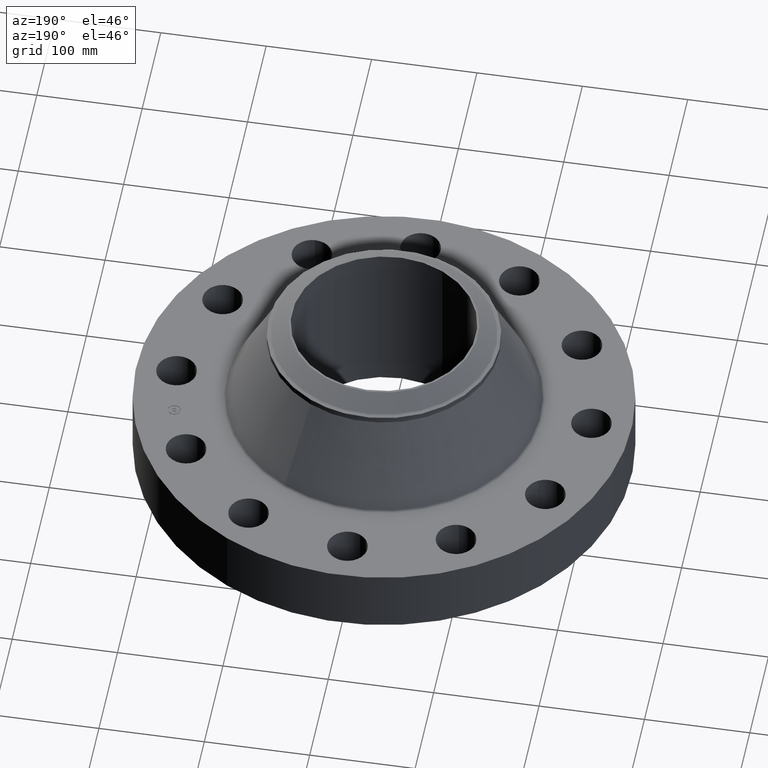
[diagram: clean part render]
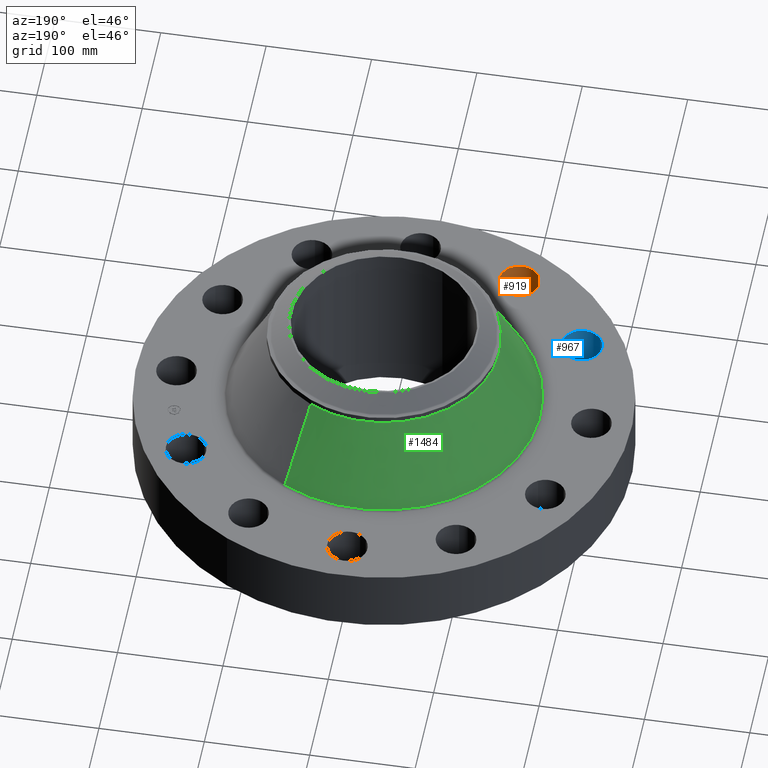
[diagram: same view with three faces highlighted in distinct colors, each labeled with its STEP entity id]
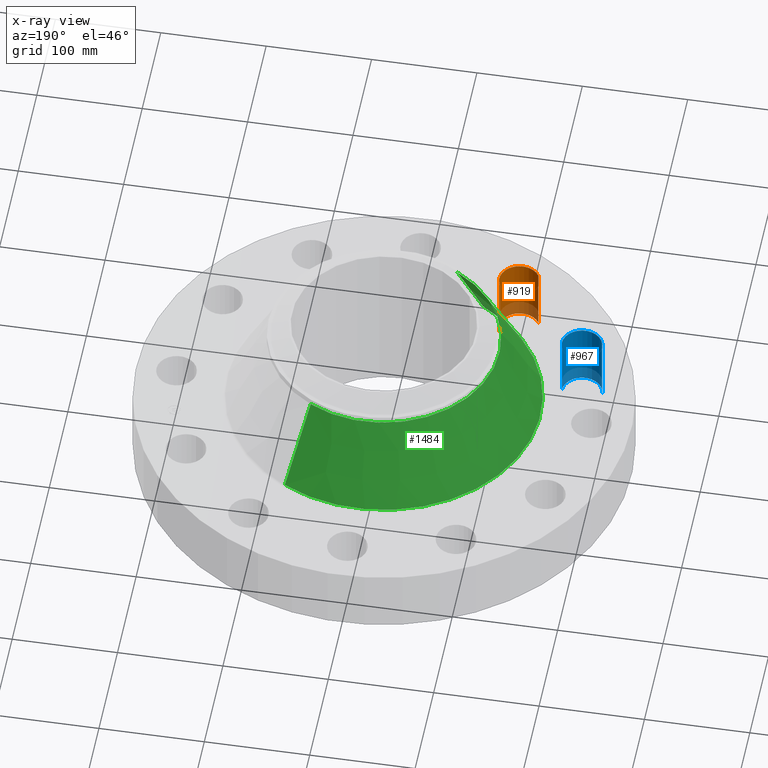
[diagram: x-ray of the same camera — body ghosted, the three highlighted faces saturated]
A machine part, auxiliary view with three faces highlighted in distinct colors.
The next image is the same camera in x-ray (body ghosted, the three faces saturated) — at least one of them is partly hidden behind the body in this view.
Their STEP definitions:

[orange] entity #919 — the highlighted cylindrical surface (edge-blend (fillet) strip) has radius 19.05 mm, axis along (-0, 0, -1).
#225=AXIS2_PLACEMENT_3D('Circle Axis2P3D',#223,#224,$) ;
#485=AXIS2_PLACEMENT_3D('Circle Axis2P3D',#483,#484,$) ;
#901=AXIS2_PLACEMENT_3D('Cylinder Axis2P3D',#898,#899,#900) ;
#223=CARTESIAN_POINT('Axis2P3D Location',(-3.875,-6.71169687942,0.)) ;
#227=CARTESIAN_POINT('Vertex',(-3.2345105176,-6.32147486196,0.)) ;
#229=CARTESIAN_POINT('Vertex',(-4.51548948246,-7.1019188968,0.)) ;
#478=CARTESIAN_POINT('Vertex',(-4.51548948246,-7.10191889674,2.50000000001)) ;
#480=CARTESIAN_POINT('Vertex',(-3.23451051757,-6.32147486195,2.5)) ;
#483=CARTESIAN_POINT('Axis2P3D Location',(-3.87500000001,-6.71169687939,2.50000000001)) ;
#898=CARTESIAN_POINT('Axis2P3D Location',(-3.87500000002,-6.71169687936,2.49606299214)) ;
#903=CARTESIAN_POINT('Line Origine',(-3.23451051757,-6.32147486195,1.25)) ;
#908=CARTESIAN_POINT('Line Origine',(-4.51548948247,-7.10191889677,1.25)) ;
#224=DIRECTION('Axis2P3D Direction',(0.,0.,-0.0393700787402)) ;
#484=DIRECTION('Axis2P3D Direction',(0.,0.,-0.0393700787402)) ;
#899=DIRECTION('Axis2P3D Direction',(-0.,0.,-0.0393700787402)) ;
#900=DIRECTION('Axis2P3D XDirection',(0.0336214951417,0.0204840954021,0.)) ;
#904=DIRECTION('Vector Direction',(0.,0.,-0.0393700787402)) ;
#909=DIRECTION('Vector Direction',(0.,0.,-0.0393700787402)) ;
#905=VECTOR('Line Direction',#904,0.0393700787402) ;
#910=VECTOR('Line Direction',#909,0.0393700787402) ;
#914=ORIENTED_EDGE('',*,*,#907,.F.) ;
#915=ORIENTED_EDGE('',*,*,#231,.T.) ;
#916=ORIENTED_EDGE('',*,*,#912,.T.) ;
#917=ORIENTED_EDGE('',*,*,#487,.F.) ;
#919=ADVANCED_FACE('PartBody',(#918),#902,.F.) ;
#226=CIRCLE('generated circle',#225,0.749999999989) ;
#486=CIRCLE('generated circle',#485,0.749999999969) ;
#902=CYLINDRICAL_SURFACE('generated cylinder',#901,0.750000000003) ;
#231=EDGE_CURVE('',#228,#230,#226,.T.) ;
#487=EDGE_CURVE('',#481,#479,#486,.T.) ;
#907=EDGE_CURVE('',#228,#481,#906,.F.) ;
#912=EDGE_CURVE('',#230,#479,#911,.F.) ;
#913=EDGE_LOOP('',(#914,#915,#916,#917)) ;
#918=FACE_OUTER_BOUND('',#913,.T.) ;
#906=LINE('Line',#903,#905) ;
#911=LINE('Line',#908,#910) ;
#228=VERTEX_POINT('',#227) ;
#230=VERTEX_POINT('',#229) ;
#479=VERTEX_POINT('',#478) ;
#481=VERTEX_POINT('',#480) ;

[blue] entity #967 — the highlighted cylindrical surface (edge-blend (fillet) strip) has radius 19.05 mm, axis along (-0, 0, -1).
#243=AXIS2_PLACEMENT_3D('Circle Axis2P3D',#241,#242,$) ;
#503=AXIS2_PLACEMENT_3D('Circle Axis2P3D',#501,#502,$) ;
#949=AXIS2_PLACEMENT_3D('Cylinder Axis2P3D',#946,#947,#948) ;
#241=CARTESIAN_POINT('Axis2P3D Location',(-6.71169687939,-3.87500000006,0.)) ;
#245=CARTESIAN_POINT('Vertex',(-5.96190570802,-3.85730256105,0.)) ;
#247=CARTESIAN_POINT('Vertex',(-7.46148805075,-3.89269743898,0.)) ;
#496=CARTESIAN_POINT('Vertex',(-7.46148805075,-3.892697439,2.50000000001)) ;
#498=CARTESIAN_POINT('Vertex',(-5.96190570799,-3.85730256105,2.5)) ;
#501=CARTESIAN_POINT('Axis2P3D Location',(-6.71169687939,-3.875,2.50000000001)) ;
#946=CARTESIAN_POINT('Axis2P3D Location',(-6.71169687936,-3.87500000002,2.49606299214)) ;
#951=CARTESIAN_POINT('Line Origine',(-5.96190570799,-3.85730256105,1.25)) ;
#956=CARTESIAN_POINT('Line Origine',(-7.46148805073,-3.89269743899,1.25)) ;
#242=DIRECTION('Axis2P3D Direction',(0.,0.,-0.0393700787402)) ;
#502=DIRECTION('Axis2P3D Direction',(0.,0.,-0.0393700787402)) ;
#947=DIRECTION('Axis2P3D Direction',(-0.,0.,-0.0393700787402)) ;
#948=DIRECTION('Axis2P3D XDirection',(0.039359116607,0.000928999420902,0.)) ;
#952=DIRECTION('Vector Direction',(0.,0.,-0.0393700787402)) ;
#957=DIRECTION('Vector Direction',(0.,0.,-0.0393700787402)) ;
#953=VECTOR('Line Direction',#952,0.0393700787402) ;
#958=VECTOR('Line Direction',#957,0.0393700787402) ;
#962=ORIENTED_EDGE('',*,*,#955,.F.) ;
#963=ORIENTED_EDGE('',*,*,#249,.T.) ;
#964=ORIENTED_EDGE('',*,*,#960,.T.) ;
#965=ORIENTED_EDGE('',*,*,#505,.F.) ;
#967=ADVANCED_FACE('PartBody',(#966),#950,.F.) ;
#244=CIRCLE('generated circle',#243,0.750000000002) ;
#504=CIRCLE('generated circle',#503,0.750000000002) ;
#950=CYLINDRICAL_SURFACE('generated cylinder',#949,0.750000000003) ;
#249=EDGE_CURVE('',#246,#248,#244,.T.) ;
#505=EDGE_CURVE('',#499,#497,#504,.T.) ;
#955=EDGE_CURVE('',#246,#499,#954,.F.) ;
#960=EDGE_CURVE('',#248,#497,#959,.F.) ;
#961=EDGE_LOOP('',(#962,#963,#964,#965)) ;
#966=FACE_OUTER_BOUND('',#961,.T.) ;
#954=LINE('Line',#951,#953) ;
#959=LINE('Line',#956,#958) ;
#246=VERTEX_POINT('',#245) ;
#248=VERTEX_POINT('',#247) ;
#497=VERTEX_POINT('',#496) ;
#499=VERTEX_POINT('',#498) ;

[green] entity #1484 — the highlighted conical surface has half-angle 26.658 deg.
#1296=AXIS2_PLACEMENT_3D('Circle Axis2P3D',#1294,#1295,$) ;
#1457=AXIS2_PLACEMENT_3D('Cone Axis2P3D',#1454,#1455,#1456) ;
#1468=AXIS2_PLACEMENT_3D('Circle Axis2P3D',#1466,#1467,$) ;
#1291=CARTESIAN_POINT('Vertex',(-2.80070118971,-5.12664913995,2.56616029439)) ;
#1294=CARTESIAN_POINT('Axis2P3D Location',(0.,0.,2.56616029439)) ;
#1298=CARTESIAN_POINT('Vertex',(2.80070118972,5.12664913995,2.56616029439)) ;
#1454=CARTESIAN_POINT('Axis2P3D Location',(0.,0.,5.60738543027)) ;
#1459=CARTESIAN_POINT('Line Origine',(-2.4347111944,-4.45670894726,4.08677286233)) ;
#1463=CARTESIAN_POINT('Vertex',(-2.06872119909,-3.78676875457,5.60738543027)) ;
#1466=CARTESIAN_POINT('Axis2P3D Location',(0.,0.,5.60738543027)) ;
#1470=CARTESIAN_POINT('Vertex',(2.06872119909,3.78676875457,5.60738543027)) ;
#1473=CARTESIAN_POINT('Line Origine',(2.4347111944,4.45670894726,4.08677286233)) ;
#1295=DIRECTION('Axis2P3D Direction',(-0.,0.,-0.0393700787402)) ;
#1455=DIRECTION('Axis2P3D Direction',(0.,0.,-0.0393700787402)) ;
#1456=DIRECTION('Axis2P3D XDirection',(-0.0188750212049,-0.0345504945626,0.)) ;
#1460=DIRECTION('Vector Direction',(-0.00846854654416,-0.0155015704698,-0.0351850555265)) ;
#1467=DIRECTION('Axis2P3D Direction',(-0.,0.,-0.0393700787402)) ;
#1474=DIRECTION('Vector Direction',(0.00846854654416,0.0155015704698,-0.0351850555265)) ;
#1461=VECTOR('Line Direction',#1460,0.0393700787402) ;
#1475=VECTOR('Line Direction',#1474,0.0393700787402) ;
#1479=ORIENTED_EDGE('',*,*,#1300,.F.) ;
#1480=ORIENTED_EDGE('',*,*,#1465,.T.) ;
#1481=ORIENTED_EDGE('',*,*,#1472,.T.) ;
#1482=ORIENTED_EDGE('',*,*,#1477,.F.) ;
#1484=ADVANCED_FACE('PartBody',(#1483),#1458,.T.) ;
#1297=CIRCLE('generated circle',#1296,5.8417855625) ;
#1469=CIRCLE('generated circle',#1468,4.31500000002) ;
#1458=CONICAL_SURFACE('Cone',#1457,4.31500000002,0.465270108095) ;
#1300=EDGE_CURVE('',#1292,#1299,#1297,.T.) ;
#1465=EDGE_CURVE('',#1292,#1464,#1462,.F.) ;
#1472=EDGE_CURVE('',#1464,#1471,#1469,.T.) ;
#1477=EDGE_CURVE('',#1299,#1471,#1476,.F.) ;
#1478=EDGE_LOOP('',(#1479,#1480,#1481,#1482)) ;
#1483=FACE_OUTER_BOUND('',#1478,.T.) ;
#1462=LINE('Line',#1459,#1461) ;
#1476=LINE('Line',#1473,#1475) ;
#1292=VERTEX_POINT('',#1291) ;
#1299=VERTEX_POINT('',#1298) ;
#1464=VERTEX_POINT('',#1463) ;
#1471=VERTEX_POINT('',#1470) ;